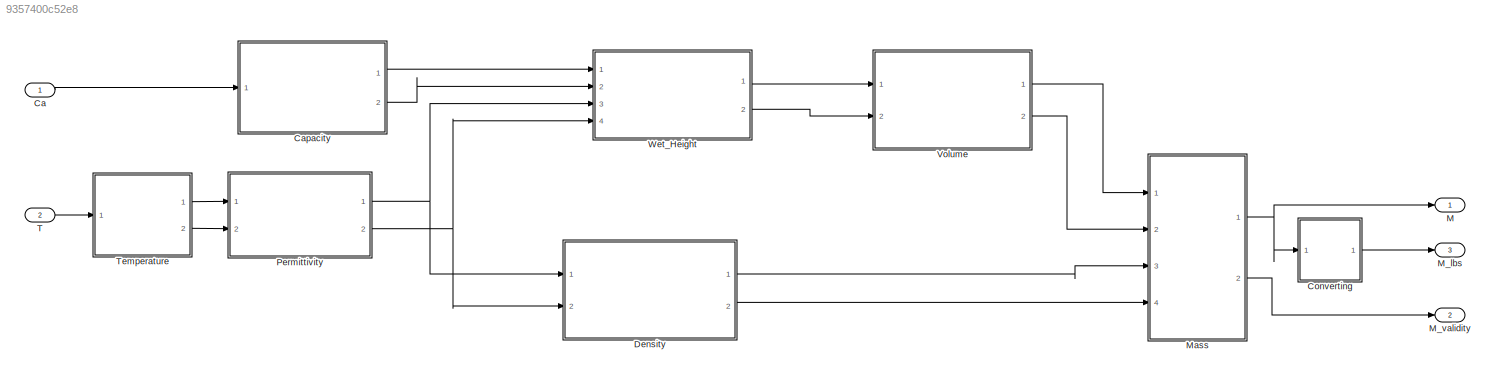
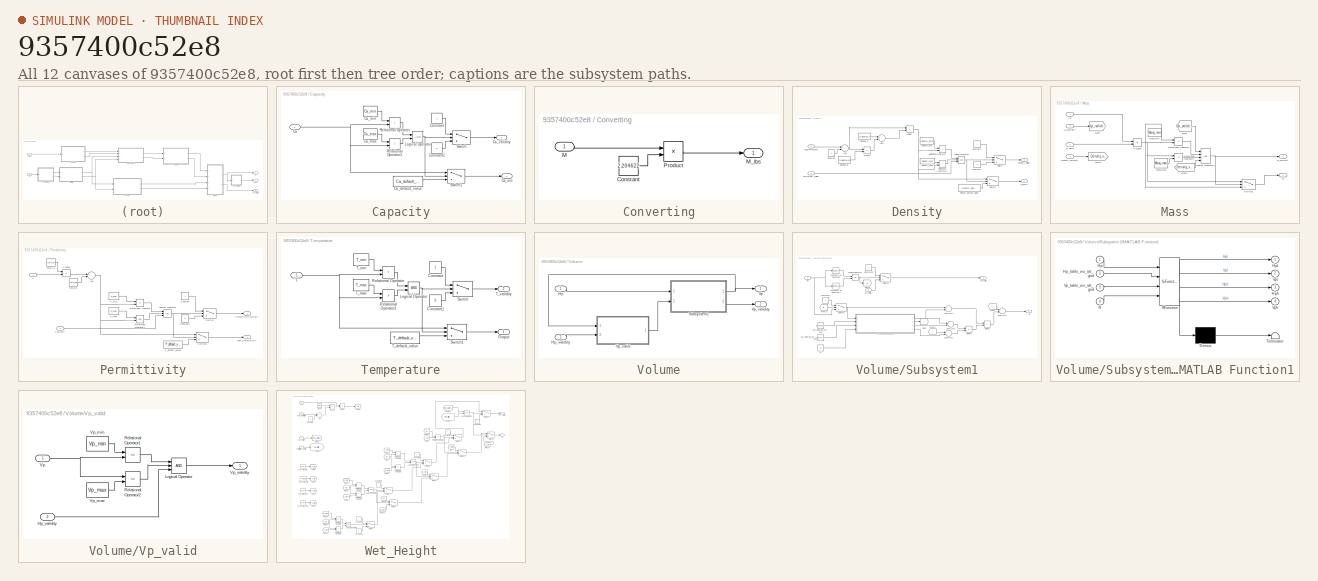
[diagram: thumbnail index - all 12 canvases of the model, root first then tree order]
MODEL slx_9357400c52e8
KIND model
CONFIG AbsTol = auto
CONFIG EnableMultiTasking = off
CONFIG FixedStep = 0.02
CONFIG MaxStep = auto
CONFIG MinStep = auto
CONFIG RelTol = 1e-3
CONFIG SampleTimeConstraint = Unconstrained
CONFIG Solver = FixedStepAuto
CONFIG SolverName = FixedStepAuto
CONFIG StartTime = 0.0
CONFIG StopTime = 10
BLOCK [Inport] Ca
  IconDisplay = Port number
  OutDataTypeStr = double
  OutMax = 1000
  OutMin = -10
  Unit = pF
BLOCK [SubSystem] Capacity
  Ports = [1, 2]
  RTWFcnNameOpts = Use subsystem name
  RTWFileNameOpts = Use subsystem name
  RTWSystemCode = Reusable function
  RequestExecContextInheritance = off
  TreatAsAtomicUnit = on
BLOCK [Inport] Capacity/Ca
  IconDisplay = Port number
BLOCK [Constant] Capacity/Ca_default_value
  OutDataTypeStr = double
  Value = Ca_default_value
BLOCK [Constant] Capacity/Ca_max
  OutDataTypeStr = double
  Value = Ca_max
BLOCK [Constant] Capacity/Ca_min
  OutDataTypeStr = double
  Value = Ca_min
BLOCK [Outport] Capacity/Ca_out
  IconDisplay = Port number
BLOCK [Outport] Capacity/Ca_validity
  IconDisplay = Port number
  Port = 2
BLOCK [Constant] Capacity/Constant
  OutDataTypeStr = boolean
BLOCK [Constant] Capacity/Constant1
  OutDataTypeStr = boolean
  Value = 0
BLOCK [Logic] Capacity/Logical Operator
  AllPortsSameDT = off
  OutDataTypeStr = boolean
  Ports = [2, 1]
BLOCK [RelationalOperator] Capacity/Relational Operator
  InputSameDT = off
  Operator = <
  OutDataTypeStr = boolean
  Ports = [2, 1]
  RndMeth = Simplest
BLOCK [RelationalOperator] Capacity/Relational Operator1
  InputSameDT = off
  Operator = >
  OutDataTypeStr = boolean
  Ports = [2, 1]
  RndMeth = Simplest
BLOCK [Switch] Capacity/Switch
  Criteria = u2 > Threshold
  InputSameDT = off
  OutDataTypeStr = boolean
  SaturateOnIntegerOverflow = off
BLOCK [Switch] Capacity/Switch1
  Criteria = u2 > Threshold
  InputSameDT = off
  SaturateOnIntegerOverflow = off
BLOCK [SubSystem] Converting
  Ports = [1, 1]
  RTWFcnNameOpts = Use subsystem name
  RTWFileNameOpts = Use subsystem name
  RTWSystemCode = Reusable function
  RequestExecContextInheritance = off
  TreatAsAtomicUnit = on
BLOCK [Constant] Converting/Constant
  OutDataTypeStr = double
  Value = 2.204622
BLOCK [Inport] Converting/M
  IconDisplay = Port number
  OutDataTypeStr = double
  Unit = kg
BLOCK [Outport] Converting/M_lbs
  IconDisplay = Port number
  OutDataTypeStr = double
  Unit = lb
BLOCK [Product] Converting/Product
  InputSameDT = off
  OutDataTypeStr = Inherit: Inherit via internal rule
  Ports = [2, 1]
  RndMeth = Floor
  SaturateOnIntegerOverflow = off
BLOCK [SubSystem] Density
  Ports = [2, 2]
  RTWFcnNameOpts = Use subsystem name
  RTWFileNameOpts = Use subsystem name
  RTWSystemCode = Reusable function
  RequestExecContextInheritance = off
  TreatAsAtomicUnit = on
BLOCK [Sum] Density/Add
  InputSameDT = off
  Inputs = +-
  OutDataTypeStr = Inherit: Inherit via internal rule
  Ports = [2, 1]
  SaturateOnIntegerOverflow = off
BLOCK [Sum] Density/Add1
  InputSameDT = off
  OutDataTypeStr = Inherit: Inherit via internal rule
  Ports = [2, 1]
  SaturateOnIntegerOverflow = off
BLOCK [Constant] Density/Clausius_A
  OutDataTypeStr = double
  OutMax = 1.25
  OutMin = 0.75
  Value = Clausius_A
BLOCK [Constant] Density/Clausius_B
  OutDataTypeStr = double
  OutMax = 0.5
  OutMin = 0.25
  Value = Clausius_B
BLOCK [Constant] Density/Constant
BLOCK [Constant] Density/Constant1
  OutDataTypeStr = boolean
BLOCK [Constant] Density/Constant2
  OutDataTypeStr = boolean
  Value = 0
BLOCK [Outport] Density/D_perm
  IconDisplay = Port number
  OutDataTypeStr = double
  Unit = kg/L
BLOCK [Constant] Density/Density_default_value
  OutDataTypeStr = double
  OutMax = 1.0
  OutMin = 0.5
  Value = Density_default_value
BLOCK [Constant] Density/Density_max
  OutDataTypeStr = double
  Value = Density_max
BLOCK [Constant] Density/Density_min
  OutDataTypeStr = double
  Value = Density_min
BLOCK [Outport] Density/Density_validity
  IconDisplay = Port number
  OutDataTypeStr = boolean
  Port = 2
BLOCK [Product] Density/Divide
  InputSameDT = off
  Inputs = */
  OutDataTypeStr = Inherit: Inherit via internal rule
  Ports = [2, 1]
  RndMeth = Floor
  SaturateOnIntegerOverflow = off
BLOCK [Inport] Density/Fuel_Permittivity
  IconDisplay = Port number
  OutDataTypeStr = double
BLOCK [Logic] Density/Logical Operator
  AllPortsSameDT = off
  Inputs = 3
  OutDataTypeStr = boolean
  Ports = [3, 1]
BLOCK [Inport] Density/Permittivity_validity
  IconDisplay = Port number
  OutDataTypeStr = boolean
  Port = 2
BLOCK [Product] Density/Product
  InputSameDT = off
  OutDataTypeStr = double
  Ports = [2, 1]
  RndMeth = Floor
  SaturateOnIntegerOverflow = off
BLOCK [RelationalOperator] Density/Relational Operator
  InputSameDT = off
  Operator = <
  OutDataTypeStr = boolean
  Ports = [2, 1]
  RndMeth = Simplest
BLOCK [RelationalOperator] Density/Relational Operator1
  InputSameDT = off
  Operator = >
  OutDataTypeStr = boolean
  Ports = [2, 1]
  RndMeth = Simplest
BLOCK [Switch] Density/Switch
  Criteria = u2 > Threshold
  InputSameDT = off
  OutDataTypeStr = boolean
  SaturateOnIntegerOverflow = off
BLOCK [Switch] Density/Switch1
  Criteria = u2 > Threshold
  InputSameDT = off
  SaturateOnIntegerOverflow = off
BLOCK [Outport] M
  IconDisplay = Port number
  OutDataTypeStr = double
  Unit = kg
BLOCK [Outport] M_lbs
  IconDisplay = Port number
  OutDataTypeStr = double
  Port = 3
  Unit = lb
BLOCK [Outport] M_validity
  IconDisplay = Port number
  OutDataTypeStr = boolean
  Port = 2
BLOCK [SubSystem] Mass
  Ports = [4, 2]
  RTWFcnNameOpts = Use subsystem name
  RTWFileNameOpts = Use subsystem name
  RTWSystemCode = Reusable function
  RequestExecContextInheritance = off
  TreatAsAtomicUnit = on
BLOCK [Inport] Mass/D_perm
  IconDisplay = Port number
  OutDataTypeStr = double
  Port = 3
  Unit = kg/L
BLOCK [Inport] Mass/Density_validity
  IconDisplay = Port number
  OutDataTypeStr = boolean
  Port = 4
BLOCK [From] Mass/From
  GotoTag = Vp_validity
BLOCK [From] Mass/From1
  GotoTag = Density_validity
BLOCK [Goto] Mass/Goto
  GotoTag = Vp_validity
BLOCK [Goto] Mass/Goto1
  GotoTag = Density_validity
BLOCK [Logic] Mass/Logical Operator1
  AllPortsSameDT = off
  Inputs = 4
  OutDataTypeStr = boolean
  Ports = [4, 1]
BLOCK [Outport] Mass/M
  IconDisplay = Port number
  OutDataTypeStr = double
  Unit = kg
BLOCK [Outport] Mass/M_validity
  IconDisplay = Port number
  OutDataTypeStr = boolean
  Port = 2
BLOCK [Constant] Mass/Mass_max
  OutDataTypeStr = double
  Value = Mass_max
BLOCK [Constant] Mass/Mass_min
  OutDataTypeStr = double
  Value = Mass_min
BLOCK [Product] Mass/Product
  InputSameDT = off
  OutDataTypeStr = Inherit: Inherit via internal rule
  Ports = [2, 1]
  RndMeth = Floor
  SaturateOnIntegerOverflow = off
BLOCK [RelationalOperator] Mass/Relational Operator
  InputSameDT = off
  Operator = <=
  OutDataTypeStr = boolean
  Ports = [2, 1]
  RndMeth = Simplest
BLOCK [RelationalOperator] Mass/Relational Operator1
  InputSameDT = off
  Operator = <=
  OutDataTypeStr = boolean
  Ports = [2, 1]
  RndMeth = Simplest
BLOCK [Switch] Mass/Switch1
  Criteria = u2 > Threshold
  InputSameDT = off
  SaturateOnIntegerOverflow = off
BLOCK [Inport] Mass/Vp
  IconDisplay = Port number
  OutDataTypeStr = double
  Unit = L
BLOCK [Inport] Mass/Vp_validity
  IconDisplay = Port number
  OutDataTypeStr = boolean
  Port = 2
BLOCK [SubSystem] Permittivity
  Ports = [2, 2]
  RTWFcnNameOpts = Use subsystem name
  RTWFileNameOpts = Use subsystem name
  RTWSystemCode = Reusable function
  RequestExecContextInheritance = off
  TreatAsAtomicUnit = on
BLOCK [Sum] Permittivity/Add
  AccumDataTypeStr = double
  InputSameDT = off
  OutDataTypeStr = double
  Ports = [2, 1]
  SaturateOnIntegerOverflow = off
BLOCK [Constant] Permittivity/Constant
  OutDataTypeStr = boolean
BLOCK [Constant] Permittivity/Constant1
  OutDataTypeStr = boolean
  Value = 0
BLOCK [Outport] Permittivity/Fuel_Permittivity
  IconDisplay = Port number
  OutDataTypeStr = double
BLOCK [Logic] Permittivity/Logical Operator
  AllPortsSameDT = off
  Inputs = 3
  OutDataTypeStr = boolean
  Ports = [3, 1]
BLOCK [Constant] Permittivity/P_default_value
  OutDataTypeStr = double
  Value = P_default_value
BLOCK [Constant] Permittivity/P_max
  OutDataTypeStr = double
  Value = P_max
BLOCK [Constant] Permittivity/P_min
  OutDataTypeStr = double
  Value = P_min
BLOCK [Outport] Permittivity/Permittivity_validity
  IconDisplay = Port number
  OutDataTypeStr = boolean
  Port = 2
BLOCK [Product] Permittivity/Product
  InputSameDT = off
  OutDataTypeStr = double
  Ports = [2, 1]
  RndMeth = Floor
  SaturateOnIntegerOverflow = off
BLOCK [RelationalOperator] Permittivity/Relational Operator
  InputSameDT = off
  Operator = <=
  OutDataTypeStr = boolean
  Ports = [2, 1]
  RndMeth = Simplest
BLOCK [RelationalOperator] Permittivity/Relational Operator1
  InputSameDT = off
  OutDataTypeStr = boolean
  Ports = [2, 1]
  RndMeth = Simplest
BLOCK [Switch] Permittivity/Switch
  Criteria = u2 > Threshold
  InputSameDT = off
  OutDataTypeStr = boolean
  SaturateOnIntegerOverflow = off
BLOCK [Switch] Permittivity/Switch1
  Criteria = u2 > Threshold
  InputSameDT = off
  SaturateOnIntegerOverflow = off
BLOCK [Inport] Permittivity/T
  IconDisplay = Port number
  OutDataTypeStr = double
  Unit = °C
BLOCK [Inport] Permittivity/T_validity
  IconDisplay = Port number
  OutDataTypeStr = boolean
  OutMax = 1
  OutMin = 0
  Port = 2
BLOCK [Constant] Permittivity/teta_Ak
  OutDataTypeStr = double
  OutMax = 2.5
  OutMin = 1.8
  Value = teta_Ak
BLOCK [Constant] Permittivity/teta_Bk
  OutDataTypeStr = double
  OutMax = 0
  OutMin = -0.1
  Value = teta_Bk
BLOCK [Inport] T
  IconDisplay = Port number
  OutDataTypeStr = double
  OutMax = 150
  OutMin = -100
  Port = 2
  Unit = °C
BLOCK [SubSystem] Temperature
  Ports = [1, 2]
  RTWFcnNameOpts = Use subsystem name
  RTWSystemCode = Reusable function
  RequestExecContextInheritance = off
  TreatAsAtomicUnit = on
BLOCK [Constant] Temperature/Constant
  OutDataTypeStr = boolean
BLOCK [Constant] Temperature/Constant1
  OutDataTypeStr = boolean
  Value = 0
BLOCK [Logic] Temperature/Logical Operator
  AllPortsSameDT = off
  OutDataTypeStr = boolean
  Ports = [2, 1]
BLOCK [Outport] Temperature/Output
  IconDisplay = Port number
  OutDataTypeStr = double
  Unit = °C
BLOCK [RelationalOperator] Temperature/Relational Operator
  InputSameDT = off
  Operator = <
  OutDataTypeStr = boolean
  Ports = [2, 1]
  RndMeth = Simplest
BLOCK [RelationalOperator] Temperature/Relational Operator1
  InputSameDT = off
  Operator = >
  OutDataTypeStr = boolean
  Ports = [2, 1]
  RndMeth = Simplest
BLOCK [Switch] Temperature/Switch
  Criteria = u2 > Threshold
  InputSameDT = off
  OutDataTypeStr = boolean
  SaturateOnIntegerOverflow = off
BLOCK [Switch] Temperature/Switch1
  Criteria = u2 > Threshold
  InputSameDT = off
  SaturateOnIntegerOverflow = off
BLOCK [Inport] Temperature/T
  IconDisplay = Port number
  OutDataTypeStr = double
  Unit = °C
BLOCK [Constant] Temperature/T_default_value
  OutDataTypeStr = double
  Value = T_default_value
BLOCK [Constant] Temperature/T_max
  OutDataTypeStr = double
  Value = T_max
BLOCK [Constant] Temperature/T_min
  OutDataTypeStr = double
  Value = T_min
BLOCK [Outport] Temperature/T_validity
  IconDisplay = Port number
  OutDataTypeStr = boolean
  OutMax = 1
  OutMin = 0
  Port = 2
BLOCK [SubSystem] Volume
  Ports = [2, 2]
  RTWFcnNameOpts = Use subsystem name
  RTWFileNameOpts = Use subsystem name
  RTWSystemCode = Reusable function
  RequestExecContextInheritance = off
  TreatAsAtomicUnit = on
BLOCK [Inport] Volume/Hp
  IconDisplay = Port number
  OutDataTypeStr = double
BLOCK [Inport] Volume/Hp_validity
  IconDisplay = Port number
  OutDataTypeStr = boolean
  Port = 2
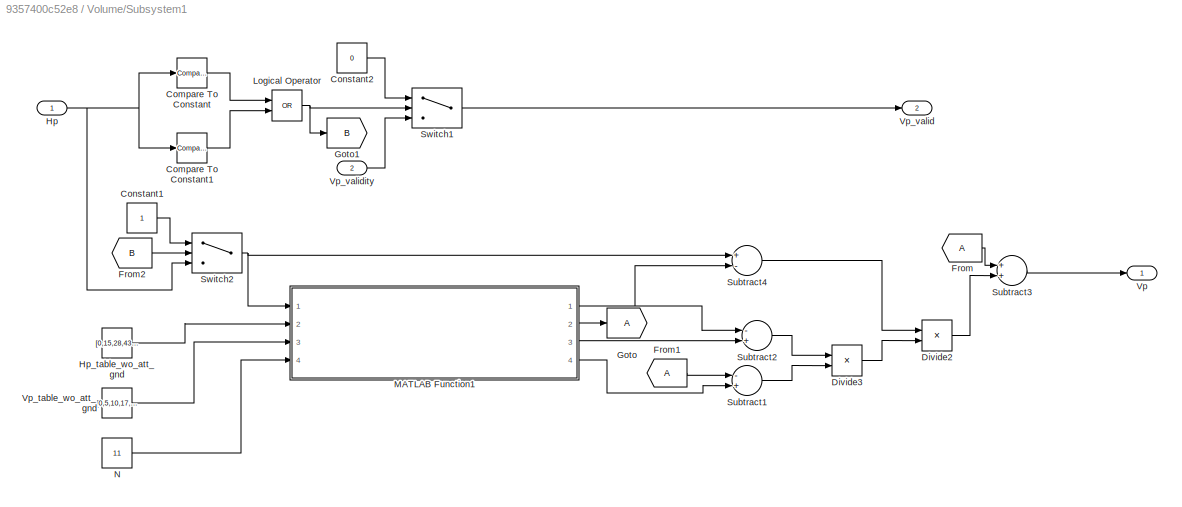
BLOCK [SubSystem] Volume/Subsystem1
  Ports = [2, 2]
  RequestExecContextInheritance = off
BLOCK [Reference] Volume/Subsystem1/Compare To Constant  REF=simulink/Logic and Bit
Operations/Compare
To Constant
  Ports = [1, 1]
  SourceBlock = simulink/Logic and Bit\nOperations/Compare\nTo Constant
  SourceProductBaseCode = SL
  SourceProductName = Simulink
  SourceType = Compare To Constant
BLOCK [Reference] Volume/Subsystem1/Compare To Constant1  REF=simulink/Logic and Bit
Operations/Compare
To Constant
  Ports = [1, 1]
  SourceBlock = simulink/Logic and Bit\nOperations/Compare\nTo Constant
  SourceProductBaseCode = SL
  SourceProductName = Simulink
  SourceType = Compare To Constant
BLOCK [Constant] Volume/Subsystem1/Constant1
BLOCK [Constant] Volume/Subsystem1/Constant2
  OutDataTypeStr = boolean
  Value = 0
BLOCK [Product] Volume/Subsystem1/Divide2
  InputSameDT = off
  Inputs = **
  OutDataTypeStr = Inherit: Inherit via internal rule
  Ports = [2, 1]
  RndMeth = Floor
  SaturateOnIntegerOverflow = off
BLOCK [Product] Volume/Subsystem1/Divide3
  InputSameDT = off
  Inputs = /*
  OutDataTypeStr = Inherit: Inherit via internal rule
  Ports = [2, 1]
  RndMeth = Floor
  SaturateOnIntegerOverflow = off
BLOCK [From] Volume/Subsystem1/From
BLOCK [From] Volume/Subsystem1/From1
BLOCK [From] Volume/Subsystem1/From2
  GotoTag = B
BLOCK [Goto] Volume/Subsystem1/Goto
BLOCK [Goto] Volume/Subsystem1/Goto1
  GotoTag = B
BLOCK [Inport] Volume/Subsystem1/Hp
  IconDisplay = Port number
  OutDataTypeStr = double
BLOCK [Constant] Volume/Subsystem1/Hp_table_wo_att_gnd
  OutDataTypeStr = double
  Value = [0,15,28,43,58,70,84,102,115,130,143]
BLOCK [Logic] Volume/Subsystem1/Logical Operator
  AllPortsSameDT = off
  Operator = OR
  OutDataTypeStr = boolean
  Ports = [2, 1]
BLOCK [SubSystem] Volume/Subsystem1/MATLAB Function1
  ErrorFcn = Stateflow.Translate.translate
  PermitHierarchicalResolution = ExplicitOnly
  Ports = [4, 4]
  RequestExecContextInheritance = off
  SFBlockType = MATLAB Function
  TreatAsAtomicUnit = on
BLOCK [Demux] Volume/Subsystem1/MATLAB Function1/ Demux 
  Outputs = 1
  Ports = [1, 1]
BLOCK [S-Function] Volume/Subsystem1/MATLAB Function1/ SFunction 
  EnableBusSupport = on
  FunctionName = sf_sfun
  PortCounts = [4 5]
  Ports = [4, 5]
  SFcnIsStateOwnerBlock = off
  SFunctionDeploymentMode = off
  Tag = Stateflow S-Function 2
BLOCK [Terminator] Volume/Subsystem1/MATLAB Function1/ Terminator 
BLOCK [Inport] Volume/Subsystem1/MATLAB Function1/Hp
  IconDisplay = Port number
BLOCK [Inport] Volume/Subsystem1/MATLAB Function1/Hp_table_wo_att_gnd
  IconDisplay = Port number
  Port = 2
BLOCK [Outport] Volume/Subsystem1/MATLAB Function1/Hph
  IconDisplay = Port number
  Port = 3
BLOCK [Outport] Volume/Subsystem1/MATLAB Function1/Hpl
  IconDisplay = Port number
BLOCK [Inport] Volume/Subsystem1/MATLAB Function1/N
  IconDisplay = Port number
  Port = 4
BLOCK [Inport] Volume/Subsystem1/MATLAB Function1/Vp_table_wo_att_gnd
  IconDisplay = Port number
  Port = 3
BLOCK [Outport] Volume/Subsystem1/MATLAB Function1/Vph
  IconDisplay = Port number
  Port = 4
BLOCK [Outport] Volume/Subsystem1/MATLAB Function1/Vpl
  IconDisplay = Port number
  Port = 2
BLOCK [Constant] Volume/Subsystem1/N
  Value = 11
BLOCK [Sum] Volume/Subsystem1/Subtract1
  InputSameDT = off
  Inputs = -+
  OutDataTypeStr = Inherit: Inherit via internal rule
  Ports = [2, 1]
  SaturateOnIntegerOverflow = off
BLOCK [Sum] Volume/Subsystem1/Subtract2
  InputSameDT = off
  Inputs = -+
  OutDataTypeStr = Inherit: Inherit via internal rule
  Ports = [2, 1]
  SaturateOnIntegerOverflow = off
BLOCK [Sum] Volume/Subsystem1/Subtract3
  InputSameDT = off
  OutDataTypeStr = Inherit: Inherit via internal rule
  Ports = [2, 1]
  SaturateOnIntegerOverflow = off
BLOCK [Sum] Volume/Subsystem1/Subtract4
  InputSameDT = off
  Inputs = +-
  OutDataTypeStr = Inherit: Inherit via internal rule
  Ports = [2, 1]
  SaturateOnIntegerOverflow = off
BLOCK [Switch] Volume/Subsystem1/Switch1
  Criteria = u2 > Threshold
  InputSameDT = off
  SaturateOnIntegerOverflow = off
BLOCK [Switch] Volume/Subsystem1/Switch2
  Criteria = u2 > Threshold
  InputSameDT = off
  SaturateOnIntegerOverflow = off
BLOCK [Outport] Volume/Subsystem1/Vp
  IconDisplay = Port number
  OutDataTypeStr = double
  Unit = l
BLOCK [Constant] Volume/Subsystem1/Vp_table_wo_att_gnd
  OutDataTypeStr = double
  Value = [0,5,10,17,20,26,30,36,41,45,52]
BLOCK [Outport] Volume/Subsystem1/Vp_valid
  IconDisplay = Port number
  OutDataTypeStr = boolean
  Port = 2
BLOCK [Inport] Volume/Subsystem1/Vp_validity
  IconDisplay = Port number
  OutDataTypeStr = boolean
  Port = 2
BLOCK [Outport] Volume/Vp
  IconDisplay = Port number
  OutDataTypeStr = double
  Unit = l
BLOCK [SubSystem] Volume/Vp_valid
  Ports = [2, 1]
  RequestExecContextInheritance = off
BLOCK [Inport] Volume/Vp_valid/Hp_validity
  IconDisplay = Port number
  Port = 2
BLOCK [Logic] Volume/Vp_valid/Logical Operator
  AllPortsSameDT = off
  Inputs = 3
  OutDataTypeStr = boolean
  Ports = [3, 1]
BLOCK [RelationalOperator] Volume/Vp_valid/Relational Operator1
  InputSameDT = off
  Operator = <=
  OutDataTypeStr = boolean
  Ports = [2, 1]
  RndMeth = Simplest
BLOCK [RelationalOperator] Volume/Vp_valid/Relational Operator2
  InputSameDT = off
  Operator = <=
  OutDataTypeStr = boolean
  Ports = [2, 1]
  RndMeth = Simplest
BLOCK [Inport] Volume/Vp_valid/Vp
  IconDisplay = Port number
BLOCK [Constant] Volume/Vp_valid/Vp_max
  Value = Vp_max
BLOCK [Constant] Volume/Vp_valid/Vp_min
  OutDataTypeStr = double
  Value = Vp_min
BLOCK [Outport] Volume/Vp_valid/Vp_validity
  IconDisplay = Port number
BLOCK [Outport] Volume/Vp_validity
  IconDisplay = Port number
  OutDataTypeStr = boolean
  Port = 2
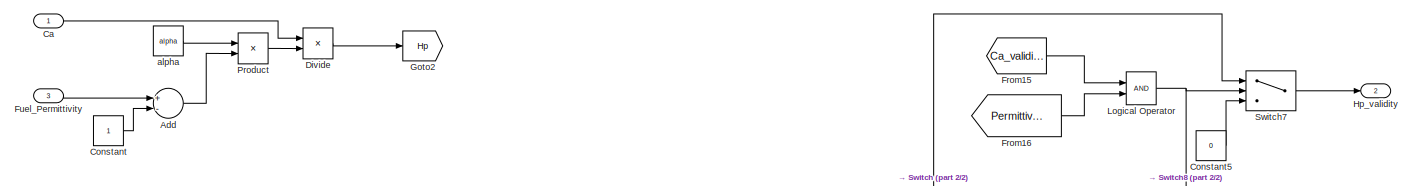
[diagram: Wet_Height - part 1/2, full width, top band]
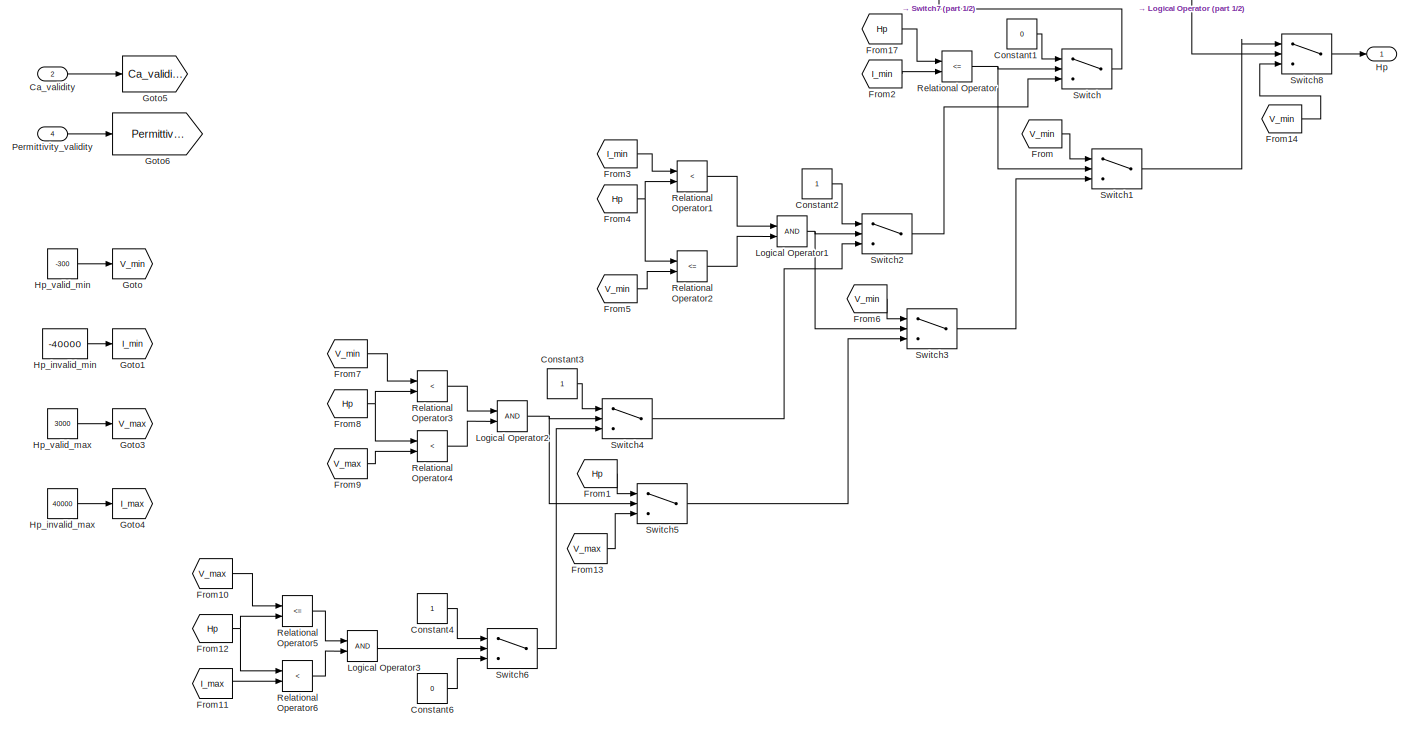
[diagram: Wet_Height - part 2/2, most of the canvas]
BLOCK [SubSystem] Wet_Height
  Ports = [4, 2]
  RTWFcnNameOpts = Use subsystem name
  RTWFileNameOpts = Use subsystem name
  RTWSystemCode = Reusable function
  RequestExecContextInheritance = off
  TreatAsAtomicUnit = on
BLOCK [Sum] Wet_Height/Add
  InputSameDT = off
  Inputs = +-
  OutDataTypeStr = Inherit: Inherit via internal rule
  Ports = [2, 1]
  SaturateOnIntegerOverflow = off
BLOCK [Inport] Wet_Height/Ca
  IconDisplay = Port number
  OutDataTypeStr = double
  Unit = pF
BLOCK [Inport] Wet_Height/Ca_validity
  IconDisplay = Port number
  OutDataTypeStr = boolean
  Port = 2
BLOCK [Constant] Wet_Height/Constant
BLOCK [Constant] Wet_Height/Constant1
  OutDataTypeStr = boolean
  Value = 0
BLOCK [Constant] Wet_Height/Constant2
  OutDataTypeStr = boolean
BLOCK [Constant] Wet_Height/Constant3
  OutDataTypeStr = boolean
BLOCK [Constant] Wet_Height/Constant4
  OutDataTypeStr = boolean
BLOCK [Constant] Wet_Height/Constant5
  OutDataTypeStr = boolean
  Value = 0
BLOCK [Constant] Wet_Height/Constant6
  OutDataTypeStr = boolean
  Value = 0
BLOCK [Product] Wet_Height/Divide
  InputSameDT = off
  Inputs = */
  OutDataTypeStr = Inherit: Inherit via internal rule
  Ports = [2, 1]
  RndMeth = Floor
  SaturateOnIntegerOverflow = off
BLOCK [From] Wet_Height/From
  GotoTag = V_min
BLOCK [From] Wet_Height/From1
  GotoTag = Hp
BLOCK [From] Wet_Height/From10
  GotoTag = V_max
BLOCK [From] Wet_Height/From11
  GotoTag = I_max
BLOCK [From] Wet_Height/From12
  GotoTag = Hp
BLOCK [From] Wet_Height/From13
  GotoTag = V_max
BLOCK [From] Wet_Height/From14
  GotoTag = V_min
BLOCK [From] Wet_Height/From15
  GotoTag = Ca_validity
BLOCK [From] Wet_Height/From16
  GotoTag = Permittivity_validity
BLOCK [From] Wet_Height/From17
  GotoTag = Hp
BLOCK [From] Wet_Height/From2
  GotoTag = I_min
BLOCK [From] Wet_Height/From3
  GotoTag = I_min
BLOCK [From] Wet_Height/From4
  GotoTag = Hp
BLOCK [From] Wet_Height/From5
  GotoTag = V_min
BLOCK [From] Wet_Height/From6
  GotoTag = V_min
BLOCK [From] Wet_Height/From7
  GotoTag = V_min
BLOCK [From] Wet_Height/From8
  GotoTag = Hp
BLOCK [From] Wet_Height/From9
  GotoTag = V_max
BLOCK [Inport] Wet_Height/Fuel_Permittivity
  IconDisplay = Port number
  OutDataTypeStr = double
  Port = 3
BLOCK [Goto] Wet_Height/Goto
  GotoTag = V_min
BLOCK [Goto] Wet_Height/Goto1
  GotoTag = I_min
BLOCK [Goto] Wet_Height/Goto2
  GotoTag = Hp
BLOCK [Goto] Wet_Height/Goto3
  GotoTag = V_max
BLOCK [Goto] Wet_Height/Goto4
  GotoTag = I_max
BLOCK [Goto] Wet_Height/Goto5
  GotoTag = Ca_validity
BLOCK [Goto] Wet_Height/Goto6
  GotoTag = Permittivity_validity
BLOCK [Outport] Wet_Height/Hp
  IconDisplay = Port number
  OutDataTypeStr = double
  Unit = mm
BLOCK [Constant] Wet_Height/Hp_invalid_max
  OutDataTypeStr = double
  Value = 40000
BLOCK [Constant] Wet_Height/Hp_invalid_min
  OutDataTypeStr = double
  Value = -40000
BLOCK [Constant] Wet_Height/Hp_valid_max
  OutDataTypeStr = double
  Value = 3000
BLOCK [Constant] Wet_Height/Hp_valid_min
  OutDataTypeStr = double
  Value = -300
BLOCK [Outport] Wet_Height/Hp_validity
  IconDisplay = Port number
  OutDataTypeStr = boolean
  Port = 2
BLOCK [Logic] Wet_Height/Logical Operator
  AllPortsSameDT = off
  OutDataTypeStr = boolean
  Ports = [2, 1]
BLOCK [Logic] Wet_Height/Logical Operator1
  AllPortsSameDT = off
  OutDataTypeStr = boolean
  Ports = [2, 1]
BLOCK [Logic] Wet_Height/Logical Operator2
  AllPortsSameDT = off
  OutDataTypeStr = boolean
  Ports = [2, 1]
BLOCK [Logic] Wet_Height/Logical Operator3
  AllPortsSameDT = off
  OutDataTypeStr = boolean
  Ports = [2, 1]
BLOCK [Inport] Wet_Height/Permittivity_validity
  IconDisplay = Port number
  OutDataTypeStr = boolean
  Port = 4
BLOCK [Product] Wet_Height/Product
  InputSameDT = off
  OutDataTypeStr = double
  Ports = [2, 1]
  RndMeth = Floor
  SaturateOnIntegerOverflow = off
BLOCK [RelationalOperator] Wet_Height/Relational Operator
  InputSameDT = off
  Operator = <=
  OutDataTypeStr = boolean
  Ports = [2, 1]
  RndMeth = Simplest
BLOCK [RelationalOperator] Wet_Height/Relational Operator1
  InputSameDT = off
  Operator = <
  OutDataTypeStr = boolean
  Ports = [2, 1]
  RndMeth = Simplest
BLOCK [RelationalOperator] Wet_Height/Relational Operator2
  InputSameDT = off
  Operator = <=
  OutDataTypeStr = boolean
  Ports = [2, 1]
  RndMeth = Simplest
BLOCK [RelationalOperator] Wet_Height/Relational Operator3
  InputSameDT = off
  Operator = <
  OutDataTypeStr = boolean
  Ports = [2, 1]
  RndMeth = Simplest
BLOCK [RelationalOperator] Wet_Height/Relational Operator4
  InputSameDT = off
  Operator = <
  OutDataTypeStr = boolean
  Ports = [2, 1]
  RndMeth = Simplest
BLOCK [RelationalOperator] Wet_Height/Relational Operator5
  InputSameDT = off
  Operator = <=
  OutDataTypeStr = boolean
  Ports = [2, 1]
  RndMeth = Simplest
BLOCK [RelationalOperator] Wet_Height/Relational Operator6
  InputSameDT = off
  Operator = <
  OutDataTypeStr = boolean
  Ports = [2, 1]
  RndMeth = Simplest
BLOCK [Switch] Wet_Height/Switch
  Criteria = u2 > Threshold
  InputSameDT = off
  OutDataTypeStr = boolean
  SaturateOnIntegerOverflow = off
BLOCK [Switch] Wet_Height/Switch1
  Criteria = u2 > Threshold
  InputSameDT = off
  SaturateOnIntegerOverflow = off
BLOCK [Switch] Wet_Height/Switch2
  Criteria = u2 > Threshold
  InputSameDT = off
  OutDataTypeStr = boolean
  SaturateOnIntegerOverflow = off
BLOCK [Switch] Wet_Height/Switch3
  Criteria = u2 > Threshold
  InputSameDT = off
  SaturateOnIntegerOverflow = off
BLOCK [Switch] Wet_Height/Switch4
  Criteria = u2 > Threshold
  InputSameDT = off
  OutDataTypeStr = boolean
  SaturateOnIntegerOverflow = off
BLOCK [Switch] Wet_Height/Switch5
  Criteria = u2 > Threshold
  InputSameDT = off
  SaturateOnIntegerOverflow = off
BLOCK [Switch] Wet_Height/Switch6
  Criteria = u2 > Threshold
  InputSameDT = off
  OutDataTypeStr = boolean
  SaturateOnIntegerOverflow = off
BLOCK [Switch] Wet_Height/Switch7
  Criteria = u2 > Threshold
  InputSameDT = off
  OutDataTypeStr = boolean
  SaturateOnIntegerOverflow = off
BLOCK [Switch] Wet_Height/Switch8
  Criteria = u2 > Threshold
  InputSameDT = off
  SaturateOnIntegerOverflow = off
BLOCK [Constant] Wet_Height/alpha
  OutDataTypeStr = double
  OutMax = 0.3
  OutMin = 0.01
  Value = alpha
LINE Ca:1 -> Capacity:1
NET Capacity/Ca:1 -> Capacity/Relational Operator1:2, Capacity/Relational Operator:2, Capacity/Switch1:1
LINE Capacity/Ca_default_value:1 -> Capacity/Switch1:3
LINE Capacity/Ca_max:1 -> Capacity/Relational Operator1:1
LINE Capacity/Ca_min:1 -> Capacity/Relational Operator:1
LINE Capacity/Constant1:1 -> Capacity/Switch:3
LINE Capacity/Constant:1 -> Capacity/Switch:1
NET Capacity/Logical Operator:1 -> Capacity/Switch1:2, Capacity/Switch:2
LINE Capacity/Relational Operator1:1 -> Capacity/Logical Operator:2
LINE Capacity/Relational Operator:1 -> Capacity/Logical Operator:1
LINE Capacity/Switch1:1 -> Capacity/Ca_out:1
LINE Capacity/Switch:1 -> Capacity/Ca_validity:1
LINE Capacity:1 -> Wet_Height:1
LINE Capacity:2 -> Wet_Height:2
LINE Converting/Constant:1 -> Converting/Product:2
LINE Converting/M:1 -> Converting/Product:1
LINE Converting/Product:1 -> Converting/M_lbs:1
LINE Converting:1 -> M_lbs:1
LINE Density/Add1:1 -> Density/Divide:2
NET Density/Add:1 -> Density/Divide:1, Density/Product:1
LINE Density/Clausius_A:1 -> Density/Add1:1
LINE Density/Clausius_B:1 -> Density/Product:2
LINE Density/Constant1:1 -> Density/Switch:1
LINE Density/Constant2:1 -> Density/Switch:3
LINE Density/Constant:1 -> Density/Add:2
LINE Density/Density_default_value:1 -> Density/Switch1:3
LINE Density/Density_max:1 -> Density/Relational Operator1:1
LINE Density/Density_min:1 -> Density/Relational Operator:1
NET Density/Divide:1 -> Density/Relational Operator1:2, Density/Relational Operator:2, Density/Switch1:1
LINE Density/Fuel_Permittivity:1 -> Density/Add:1
NET Density/Logical Operator:1 -> Density/Switch1:2, Density/Switch:2
LINE Density/Permittivity_validity:1 -> Density/Logical Operator:3
LINE Density/Product:1 -> Density/Add1:2
LINE Density/Relational Operator1:1 -> Density/Logical Operator:2
LINE Density/Relational Operator:1 -> Density/Logical Operator:1
LINE Density/Switch1:1 -> Density/D_perm:1
LINE Density/Switch:1 -> Density/Density_validity:1
LINE Density:1 -> Mass:3
LINE Density:2 -> Mass:4
LINE Mass/D_perm:1 -> Mass/Product:2
LINE Mass/Density_validity:1 -> Mass/Goto1:1
LINE Mass/From1:1 -> Mass/Logical Operator1:4
LINE Mass/From:1 -> Mass/Logical Operator1:1
NET Mass/Logical Operator1:1 -> Mass/M_validity:1, Mass/Switch1:2
LINE Mass/Mass_max:1 -> Mass/Relational Operator1:2
NET Mass/Mass_min:1 -> Mass/Relational Operator:1, Mass/Switch1:3
NET Mass/Product:1 -> Mass/Relational Operator1:1, Mass/Relational Operator:2, Mass/Switch1:1
LINE Mass/Relational Operator1:1 -> Mass/Logical Operator1:3
LINE Mass/Relational Operator:1 -> Mass/Logical Operator1:2
LINE Mass/Switch1:1 -> Mass/M:1
LINE Mass/Vp:1 -> Mass/Product:1
LINE Mass/Vp_validity:1 -> Mass/Goto:1
NET Mass:1 -> Converting:1, M:1
LINE Mass:2 -> M_validity:1
NET Permittivity/Add:1 -> Permittivity/Relational Operator1:2, Permittivity/Relational Operator:2, Permittivity/Switch1:1
LINE Permittivity/Constant1:1 -> Permittivity/Switch:3
LINE Permittivity/Constant:1 -> Permittivity/Switch:1
NET Permittivity/Logical Operator:1 -> Permittivity/Switch1:2, Permittivity/Switch:2
LINE Permittivity/P_default_value:1 -> Permittivity/Switch1:3
LINE Permittivity/P_max:1 -> Permittivity/Relational Operator1:1
LINE Permittivity/P_min:1 -> Permittivity/Relational Operator:1
LINE Permittivity/Product:1 -> Permittivity/Add:1
LINE Permittivity/Relational Operator1:1 -> Permittivity/Logical Operator:2
LINE Permittivity/Relational Operator:1 -> Permittivity/Logical Operator:1
LINE Permittivity/Switch1:1 -> Permittivity/Fuel_Permittivity:1
LINE Permittivity/Switch:1 -> Permittivity/Permittivity_validity:1
LINE Permittivity/T:1 -> Permittivity/Product:2
LINE Permittivity/T_validity:1 -> Permittivity/Logical Operator:3
LINE Permittivity/teta_Ak:1 -> Permittivity/Product:1
LINE Permittivity/teta_Bk:1 -> Permittivity/Add:2
NET Permittivity:1 -> Density:1, Wet_Height:3
NET Permittivity:2 -> Density:2, Wet_Height:4
LINE T:1 -> Temperature:1
LINE Temperature/Constant1:1 -> Temperature/Switch:3
LINE Temperature/Constant:1 -> Temperature/Switch:1
NET Temperature/Logical Operator:1 -> Temperature/Switch1:2, Temperature/Switch:2
LINE Temperature/Relational Operator1:1 -> Temperature/Logical Operator:2
LINE Temperature/Relational Operator:1 -> Temperature/Logical Operator:1
LINE Temperature/Switch1:1 -> Temperature/Output:1
LINE Temperature/Switch:1 -> Temperature/T_validity:1
NET Temperature/T:1 -> Temperature/Relational Operator1:2, Temperature/Relational Operator:2, Temperature/Switch1:1
LINE Temperature/T_default_value:1 -> Temperature/Switch1:3
LINE Temperature/T_max:1 -> Temperature/Relational Operator1:1
LINE Temperature/T_min:1 -> Temperature/Relational Operator:1
LINE Temperature:1 -> Permittivity:1
LINE Temperature:2 -> Permittivity:2
LINE Volume/Hp:1 -> Volume/Subsystem1:1
LINE Volume/Hp_validity:1 -> Volume/Vp_valid:2
LINE Volume/Subsystem1/Compare To Constant1:1 -> Volume/Subsystem1/Logical Operator:2
LINE Volume/Subsystem1/Compare To Constant:1 -> Volume/Subsystem1/Logical Operator:1
LINE Volume/Subsystem1/Constant1:1 -> Volume/Subsystem1/Switch2:1
LINE Volume/Subsystem1/Constant2:1 -> Volume/Subsystem1/Switch1:1
LINE Volume/Subsystem1/Divide2:1 -> Volume/Subsystem1/Subtract3:2
LINE Volume/Subsystem1/Divide3:1 -> Volume/Subsystem1/Divide2:2
LINE Volume/Subsystem1/From1:1 -> Volume/Subsystem1/Subtract1:1
LINE Volume/Subsystem1/From2:1 -> Volume/Subsystem1/Switch2:2
LINE Volume/Subsystem1/From:1 -> Volume/Subsystem1/Subtract3:1
NET Volume/Subsystem1/Hp:1 -> Volume/Subsystem1/Compare To Constant1:1, Volume/Subsystem1/Compare To Constant:1, Volume/Subsystem1/Switch2:3
LINE Volume/Subsystem1/Hp_table_wo_att_gnd:1 -> Volume/Subsystem1/MATLAB Function1:2
NET Volume/Subsystem1/Logical Operator:1 -> Volume/Subsystem1/Goto1:1, Volume/Subsystem1/Switch1:2
NET Volume/Subsystem1/MATLAB Function1:1 -> Volume/Subsystem1/Subtract2:1, Volume/Subsystem1/Subtract4:2
LINE Volume/Subsystem1/MATLAB Function1:2 -> Volume/Subsystem1/Goto:1
LINE Volume/Subsystem1/MATLAB Function1:3 -> Volume/Subsystem1/Subtract2:2
LINE Volume/Subsystem1/MATLAB Function1:4 -> Volume/Subsystem1/Subtract1:2
LINE Volume/Subsystem1/N:1 -> Volume/Subsystem1/MATLAB Function1:4
LINE Volume/Subsystem1/Subtract1:1 -> Volume/Subsystem1/Divide3:2
LINE Volume/Subsystem1/Subtract2:1 -> Volume/Subsystem1/Divide3:1
LINE Volume/Subsystem1/Subtract3:1 -> Volume/Subsystem1/Vp:1
LINE Volume/Subsystem1/Subtract4:1 -> Volume/Subsystem1/Divide2:1
LINE Volume/Subsystem1/Switch1:1 -> Volume/Subsystem1/Vp_valid:1
NET Volume/Subsystem1/Switch2:1 -> Volume/Subsystem1/MATLAB Function1:1, Volume/Subsystem1/Subtract4:1
LINE Volume/Subsystem1/Vp_table_wo_att_gnd:1 -> Volume/Subsystem1/MATLAB Function1:3
LINE Volume/Subsystem1/Vp_validity:1 -> Volume/Subsystem1/Switch1:3
NET Volume/Subsystem1:1 -> Volume/Vp:1, Volume/Vp_valid:1
LINE Volume/Subsystem1:2 -> Volume/Vp_validity:1
LINE Volume/Vp_valid/Hp_validity:1 -> Volume/Vp_valid/Logical Operator:3
LINE Volume/Vp_valid/Logical Operator:1 -> Volume/Vp_valid/Vp_validity:1
LINE Volume/Vp_valid/Relational Operator1:1 -> Volume/Vp_valid/Logical Operator:1
LINE Volume/Vp_valid/Relational Operator2:1 -> Volume/Vp_valid/Logical Operator:2
NET Volume/Vp_valid/Vp:1 -> Volume/Vp_valid/Relational Operator1:2, Volume/Vp_valid/Relational Operator2:1
LINE Volume/Vp_valid/Vp_max:1 -> Volume/Vp_valid/Relational Operator2:2
LINE Volume/Vp_valid/Vp_min:1 -> Volume/Vp_valid/Relational Operator1:1
LINE Volume/Vp_valid:1 -> Volume/Subsystem1:2
LINE Volume:1 -> Mass:1
LINE Volume:2 -> Mass:2
LINE Wet_Height/Add:1 -> Wet_Height/Product:2
LINE Wet_Height/Ca:1 -> Wet_Height/Divide:1
LINE Wet_Height/Ca_validity:1 -> Wet_Height/Goto5:1
LINE Wet_Height/Constant1:1 -> Wet_Height/Switch:1
LINE Wet_Height/Constant2:1 -> Wet_Height/Switch2:1
LINE Wet_Height/Constant3:1 -> Wet_Height/Switch4:1
LINE Wet_Height/Constant4:1 -> Wet_Height/Switch6:1
LINE Wet_Height/Constant5:1 -> Wet_Height/Switch7:3
LINE Wet_Height/Constant6:1 -> Wet_Height/Switch6:3
LINE Wet_Height/Constant:1 -> Wet_Height/Add:2
LINE Wet_Height/Divide:1 -> Wet_Height/Goto2:1
LINE Wet_Height/From10:1 -> Wet_Height/Relational Operator5:1
LINE Wet_Height/From11:1 -> Wet_Height/Relational Operator6:2
NET Wet_Height/From12:1 -> Wet_Height/Relational Operator5:2, Wet_Height/Relational Operator6:1
LINE Wet_Height/From13:1 -> Wet_Height/Switch5:3
LINE Wet_Height/From14:1 -> Wet_Height/Switch8:3
LINE Wet_Height/From15:1 -> Wet_Height/Logical Operator:1
LINE Wet_Height/From16:1 -> Wet_Height/Logical Operator:2
LINE Wet_Height/From17:1 -> Wet_Height/Relational Operator:1
LINE Wet_Height/From1:1 -> Wet_Height/Switch5:1
LINE Wet_Height/From2:1 -> Wet_Height/Relational Operator:2
LINE Wet_Height/From3:1 -> Wet_Height/Relational Operator1:1
NET Wet_Height/From4:1 -> Wet_Height/Relational Operator1:2, Wet_Height/Relational Operator2:1
LINE Wet_Height/From5:1 -> Wet_Height/Relational Operator2:2
LINE Wet_Height/From6:1 -> Wet_Height/Switch3:1
LINE Wet_Height/From7:1 -> Wet_Height/Relational Operator3:1
NET Wet_Height/From8:1 -> Wet_Height/Relational Operator3:2, Wet_Height/Relational Operator4:1
LINE Wet_Height/From9:1 -> Wet_Height/Relational Operator4:2
LINE Wet_Height/From:1 -> Wet_Height/Switch1:1
LINE Wet_Height/Fuel_Permittivity:1 -> Wet_Height/Add:1
LINE Wet_Height/Hp_invalid_max:1 -> Wet_Height/Goto4:1
LINE Wet_Height/Hp_invalid_min:1 -> Wet_Height/Goto1:1
LINE Wet_Height/Hp_valid_max:1 -> Wet_Height/Goto3:1
LINE Wet_Height/Hp_valid_min:1 -> Wet_Height/Goto:1
NET Wet_Height/Logical Operator1:1 -> Wet_Height/Switch2:2, Wet_Height/Switch3:2
NET Wet_Height/Logical Operator2:1 -> Wet_Height/Switch4:2, Wet_Height/Switch5:2
LINE Wet_Height/Logical Operator3:1 -> Wet_Height/Switch6:2
NET Wet_Height/Logical Operator:1 -> Wet_Height/Switch7:2, Wet_Height/Switch8:2
LINE Wet_Height/Permittivity_validity:1 -> Wet_Height/Goto6:1
LINE Wet_Height/Product:1 -> Wet_Height/Divide:2
LINE Wet_Height/Relational Operator1:1 -> Wet_Height/Logical Operator1:1
LINE Wet_Height/Relational Operator2:1 -> Wet_Height/Logical Operator1:2
LINE Wet_Height/Relational Operator3:1 -> Wet_Height/Logical Operator2:1
LINE Wet_Height/Relational Operator4:1 -> Wet_Height/Logical Operator2:2
LINE Wet_Height/Relational Operator5:1 -> Wet_Height/Logical Operator3:1
LINE Wet_Height/Relational Operator6:1 -> Wet_Height/Logical Operator3:2
NET Wet_Height/Relational Operator:1 -> Wet_Height/Switch1:2, Wet_Height/Switch:2
LINE Wet_Height/Switch1:1 -> Wet_Height/Switch8:1
LINE Wet_Height/Switch2:1 -> Wet_Height/Switch:3
LINE Wet_Height/Switch3:1 -> Wet_Height/Switch1:3
LINE Wet_Height/Switch4:1 -> Wet_Height/Switch2:3
LINE Wet_Height/Switch5:1 -> Wet_Height/Switch3:3
LINE Wet_Height/Switch6:1 -> Wet_Height/Switch4:3
LINE Wet_Height/Switch7:1 -> Wet_Height/Hp_validity:1
LINE Wet_Height/Switch8:1 -> Wet_Height/Hp:1
LINE Wet_Height/Switch:1 -> Wet_Height/Switch7:1
LINE Wet_Height/alpha:1 -> Wet_Height/Product:1
LINE Wet_Height:1 -> Volume:1
LINE Wet_Height:2 -> Volume:2
note: NET lines group one-source signal fan-out (src -> all destinations, sorted); 1:1 wires keep LINE
CHART Volume/Subsystem1/MATLAB Function1 states=1 transitions=1
  STATE_LABEL 'eML_blk_kernel()'
  STATE_LABEL 'SCRIPT:\nfunction [Hpl, Vpl, Hph, Vph] = findClosestSuppInf(Hp,Hp_table_wo_att_gnd,Vp_table_wo_att_gnd,N)\n%%Corner cases\ni=2;\n        while(i<=N && Hp_table_wo_att_gnd(i)< Hp)\n            i=i+1;\n        end\n        if(Hp_table_wo_att_gnd(i) == Hp)\n            Hpl=Hp_table_wo_att_gnd(i);\n            Hph=Hp_table_wo_att_gnd(i);\n            Vpl=Vp_table_wo_att_gnd(i);\n            Vph=Vp_table_wo_att_g...<+203ch>'
